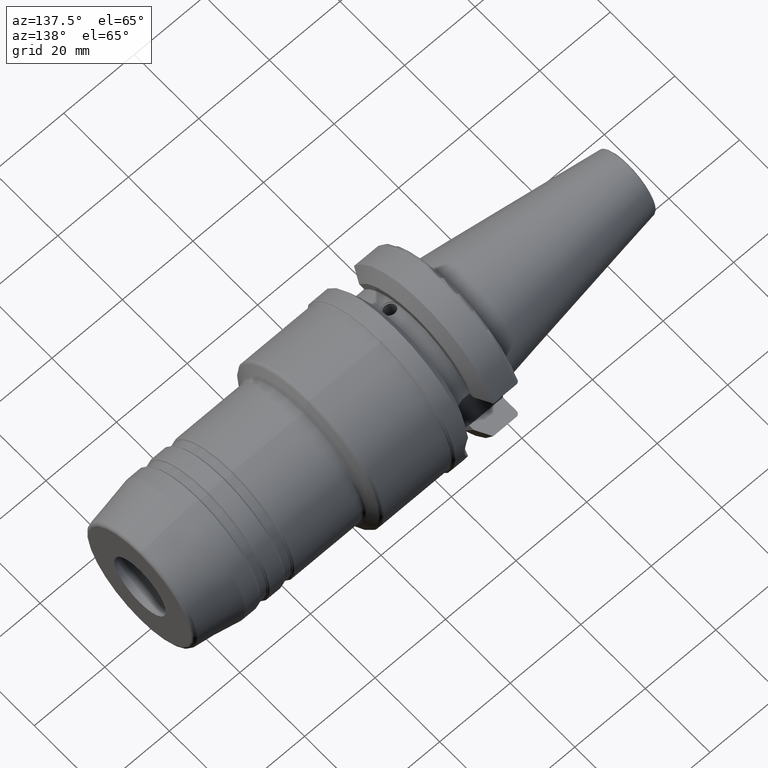
[diagram: clean part render]
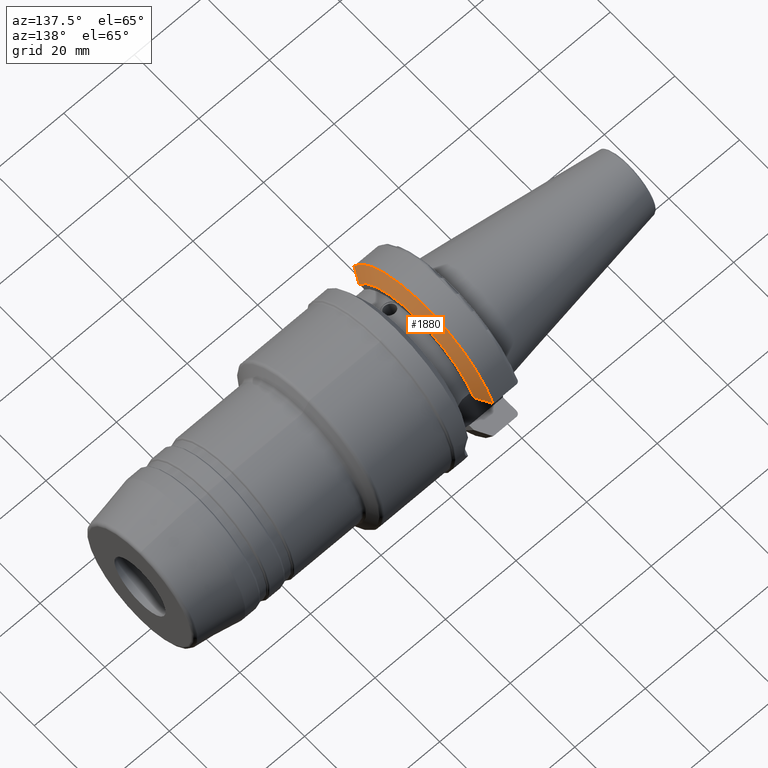
[diagram: same view with one face highlighted and labeled with its STEP entity id]
A machine part, auxiliary view. The second image highlights one B-rep face of the part: STEP entity #1880.
In plain terms, the highlighted conical surface has half-angle 60.125 deg.
Its self-contained STEP definition (entity closure, byte-faithful):
#15=(
BOUNDED_CURVE()
B_SPLINE_CURVE(2,(#3507,#3508,#3509),.UNSPECIFIED.,.F.,.F.)
B_SPLINE_CURVE_WITH_KNOTS((3,3),(0.,0.293084380504246),.UNSPECIFIED.)
CURVE()
GEOMETRIC_REPRESENTATION_ITEM()
RATIONAL_B_SPLINE_CURVE((1.,1.00176330635057,1.))
REPRESENTATION_ITEM('')
);
#18=(
BOUNDED_CURVE()
B_SPLINE_CURVE(2,(#3626,#3627,#3628),.UNSPECIFIED.,.F.,.F.)
B_SPLINE_CURVE_WITH_KNOTS((3,3),(0.,0.293084380504246),.UNSPECIFIED.)
CURVE()
GEOMETRIC_REPRESENTATION_ITEM()
RATIONAL_B_SPLINE_CURVE((1.,1.00176330634997,1.))
REPRESENTATION_ITEM('')
);
#55=CONICAL_SURFACE('',#2181,21.2331286619655,1.04937921276161);
#200=FACE_OUTER_BOUND('',#307,.T.);
#307=EDGE_LOOP('',(#1730,#1731,#1732,#1733,#1734,#1735));
#328=B_SPLINE_CURVE_WITH_KNOTS('',3,(#3449,#3450,#3451,#3452,#3453,#3454),
 .UNSPECIFIED.,.F.,.F.,(4,2,4),(1.10704244252389,1.1108573462404,1.23909804538765),
 .UNSPECIFIED.);
#339=B_SPLINE_CURVE_WITH_KNOTS('',3,(#3606,#3607,#3608,#3609),
 .UNSPECIFIED.,.F.,.F.,(4,4),(5.0512271220615,5.18123969966481),
 .UNSPECIFIED.);
#655=CIRCLE('',#2180,23.);
#656=CIRCLE('',#2182,19.466257323931);
#803=VERTEX_POINT('',#3445);
#805=VERTEX_POINT('',#3448);
#816=VERTEX_POINT('',#3506);
#831=VERTEX_POINT('',#3600);
#833=VERTEX_POINT('',#3604);
#836=VERTEX_POINT('',#3625);
#1064=EDGE_CURVE('',#805,#803,#328,.T.);
#1078=EDGE_CURVE('',#816,#805,#15,.T.);
#1109=EDGE_CURVE('',#831,#833,#339,.T.);
#1115=EDGE_CURVE('',#833,#836,#18,.T.);
#1154=EDGE_CURVE('',#836,#816,#655,.T.);
#1155=EDGE_CURVE('',#831,#803,#656,.T.);
#1730=ORIENTED_EDGE('',*,*,#1064,.T.);
#1731=ORIENTED_EDGE('',*,*,#1155,.F.);
#1732=ORIENTED_EDGE('',*,*,#1109,.T.);
#1733=ORIENTED_EDGE('',*,*,#1115,.T.);
#1734=ORIENTED_EDGE('',*,*,#1154,.T.);
#1735=ORIENTED_EDGE('',*,*,#1078,.T.);
#1880=ADVANCED_FACE('',(#200),#55,.T.);
#2180=AXIS2_PLACEMENT_3D('',#3706,#2816,#2817);
#2181=AXIS2_PLACEMENT_3D('',#3707,#2818,#2819);
#2182=AXIS2_PLACEMENT_3D('',#3708,#2820,#2821);
#2816=DIRECTION('center_axis',(1.,1.62798202122572E-21,0.));
#2817=DIRECTION('ref_axis',(0.,0.,-1.));
#2818=DIRECTION('center_axis',(-1.,-1.62798202122572E-21,0.));
#2819=DIRECTION('ref_axis',(0.,1.,0.));
#2820=DIRECTION('center_axis',(1.,1.62798202122572E-21,0.));
#2821=DIRECTION('ref_axis',(0.,0.,-1.));
#3445=CARTESIAN_POINT('',(11.6,-17.7357033748735,8.02371485036701));
#3448=CARTESIAN_POINT('',(10.95,-18.9595942383938,8.05));
#3449=CARTESIAN_POINT('Ctrl Pts',(10.95,-18.9595942383938,8.05));
#3450=CARTESIAN_POINT('Ctrl Pts',(10.9562557806344,-18.9477631556681,8.05));
#3451=CARTESIAN_POINT('Ctrl Pts',(10.9625118384736,-18.9359327756361,8.04999321957019));
#3452=CARTESIAN_POINT('Ctrl Pts',(11.1790865920839,-18.5264447527878,8.04947141492817));
#3453=CARTESIAN_POINT('Ctrl Pts',(11.3895462578573,-18.1300979399546,8.04076367811623));
#3454=CARTESIAN_POINT('Ctrl Pts',(11.6,-17.7357033748735,8.02371485036701));
#3506=CARTESIAN_POINT('',(9.57005904049381,-21.5452430944744,8.05));
#3507=CARTESIAN_POINT('Ctrl Pts',(9.57005904049381,-21.5452430944744,8.05));
#3508=CARTESIAN_POINT('Ctrl Pts',(10.3040741701992,-20.1811846958682,8.05));
#3509=CARTESIAN_POINT('Ctrl Pts',(10.95,-18.9595942383938,8.05));
#3600=CARTESIAN_POINT('',(11.6,17.7357033748735,8.02371485036701));
#3604=CARTESIAN_POINT('',(10.95,18.9595942383938,8.05));
#3606=CARTESIAN_POINT('Ctrl Pts',(11.6,17.7357033748735,8.02371485036701));
#3607=CARTESIAN_POINT('Ctrl Pts',(11.381492847094,18.1451901944475,8.04141608377791));
#3608=CARTESIAN_POINT('Ctrl Pts',(11.1645860488186,18.5537639441868,8.05));
#3609=CARTESIAN_POINT('Ctrl Pts',(10.95,18.9595942383938,8.05));
#3625=CARTESIAN_POINT('',(9.57005904049381,21.5452430944744,8.05));
#3626=CARTESIAN_POINT('Ctrl Pts',(10.95,18.9595942383938,8.05));
#3627=CARTESIAN_POINT('Ctrl Pts',(10.304074170198,20.1811846958705,8.05));
#3628=CARTESIAN_POINT('Ctrl Pts',(9.57005904049381,21.5452430944744,8.05));
#3706=CARTESIAN_POINT('Origin',(9.57005904049381,2.08175114951191E-15,0.));
#3707=CARTESIAN_POINT('Origin',(10.5850295202469,2.0817528018656E-15,0.));
#3708=CARTESIAN_POINT('Origin',(11.6,2.08175445421929E-15,0.));